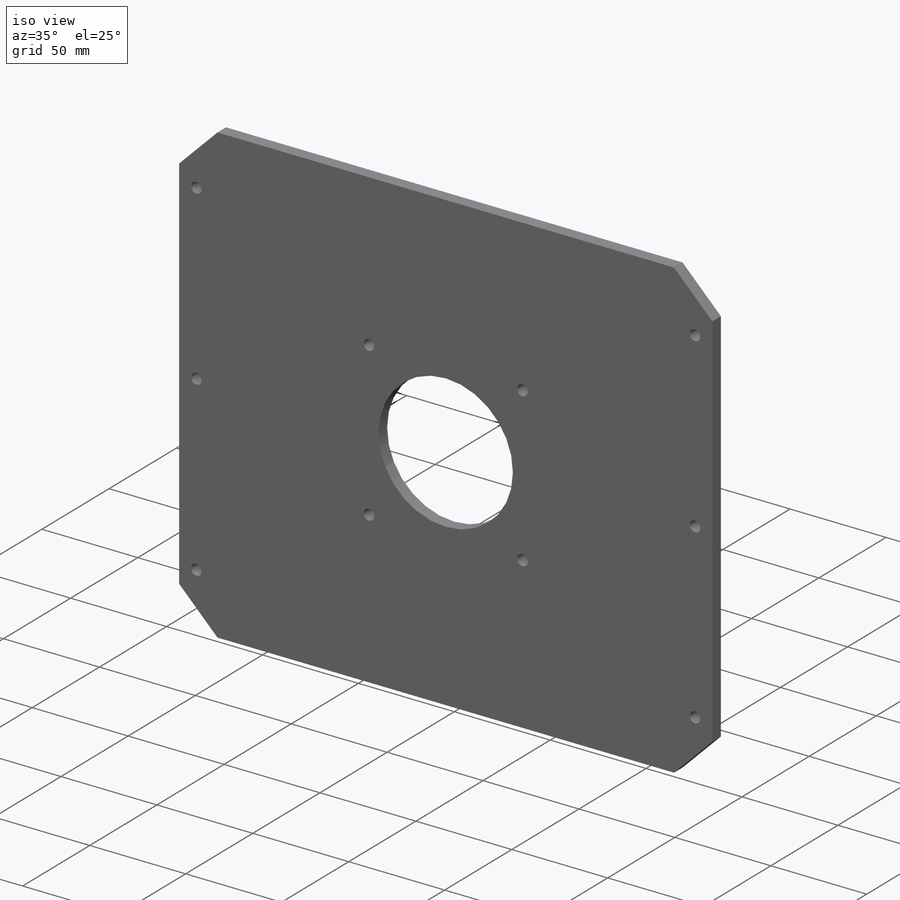
[diagram: iso view]
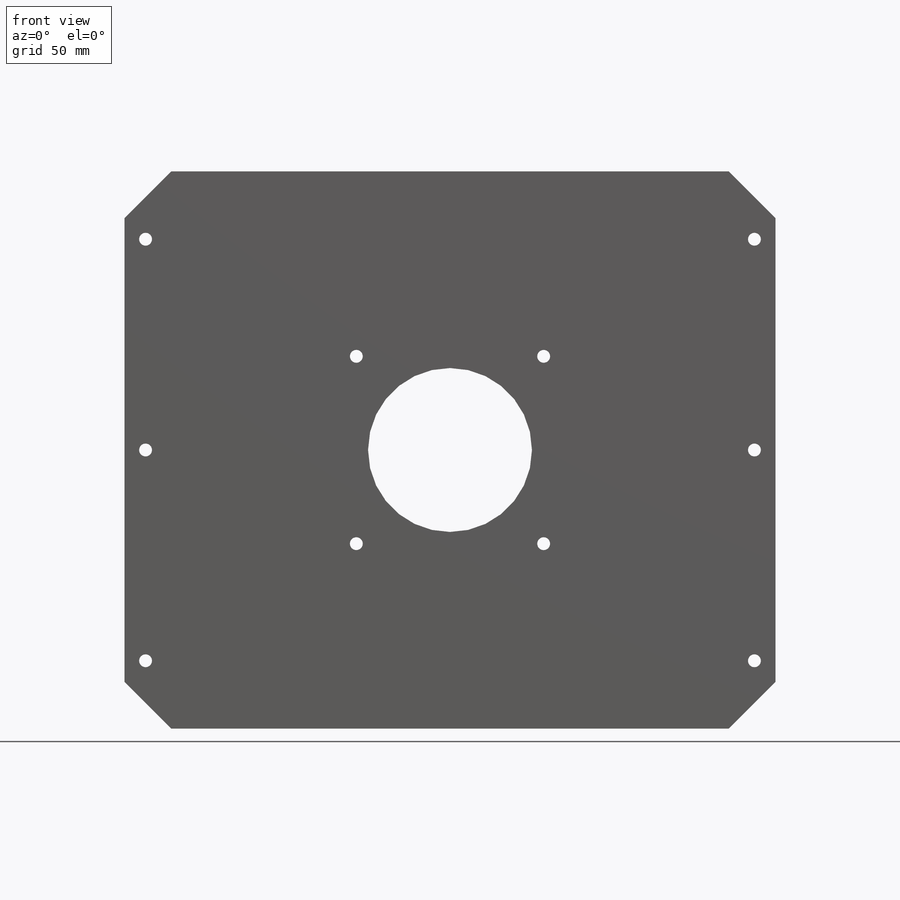
[diagram: front view]
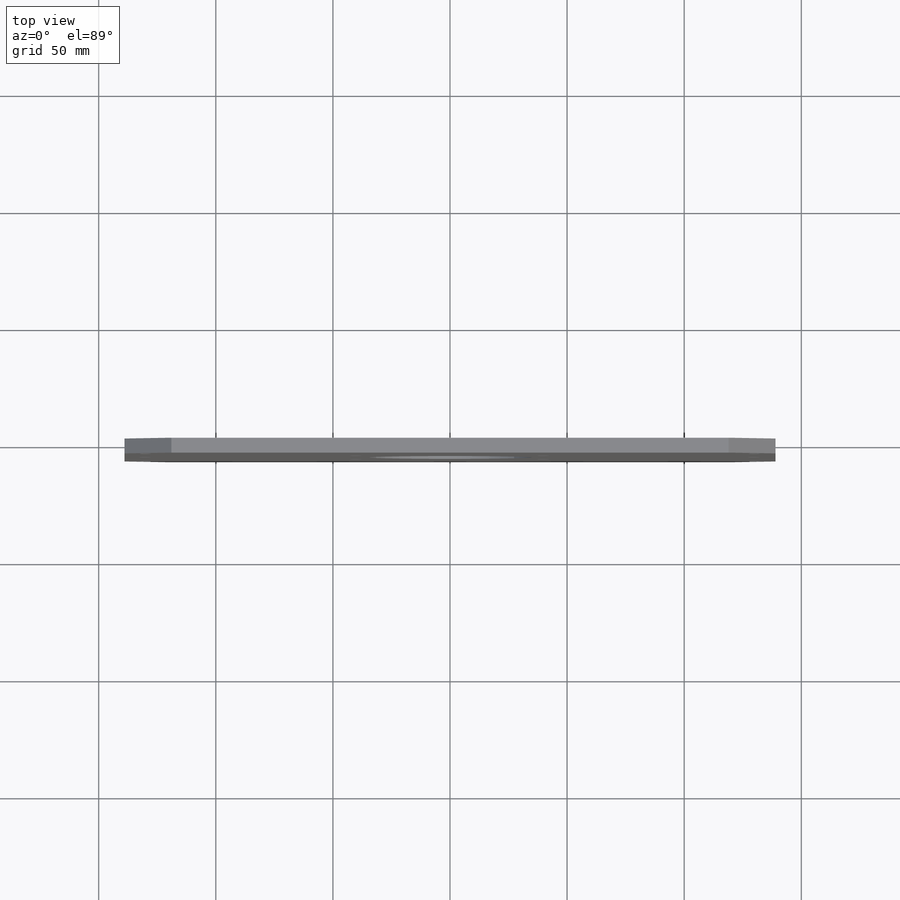
[diagram: top view]
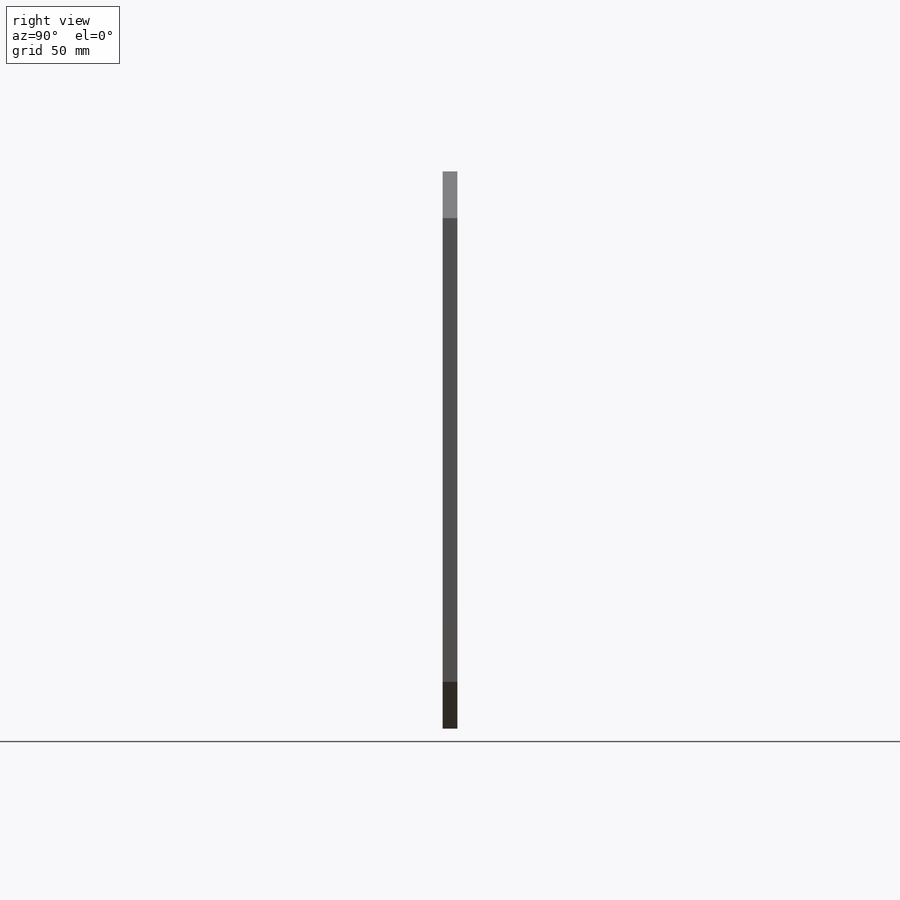
[diagram: right view]
SOLIDWORKS PART (.sldprt)
format: sldprt  version: not decoded by parser v0  size: 202,752 bytes
history: native  units: mm
features: sketch x3, cut_extrude x2, material x1, extrude x1, chamfer x1 (+13 scaffold rows collapsed)
feature tree (21):
  scaffold x13  (default folders/planes/origin — collapsed)
  material  "Material <not specified>"
  sketch  "Sketch1"  dims[D1=238.0mm D2=278.0mm]
  extrude  "Boss-Extrude1"  Depth=6.35mm
  sketch  "Sketch2"  dims[c1.D1=~54.841128mm c1.D2=5.5mm c1.D3=70.0mm c2.D1=40.0mm c2.D4=40.0mm]
  cut_extrude  "Cut-Extrude1"  [1 undecoded]
  chamfer  "Chamfer1"  Distance=20mm Angle=45deg
  sketch  "Sketch4"  dims[c1.D1=5.5mm c1.D2=5.0mm c1.D4=5.5mm c1.D7=5.5mm c2.D2=85.0mm c2.D3=90.0mm c2.D4=~93.292305mm c3.D2=9.0mm c3.D5=9.0mm c3.D6=90.0mm]
  cut_extrude  "Cut-Extrude2"  Depth=76.2mm
decode coverage: 6 of 7 modeling features carry decoded parameters
note: ~ marks probable driven/reference dimensions
note: 1 parameter value undecoded
note: suppression state not decoded; provenance and decode notes live in map.json
